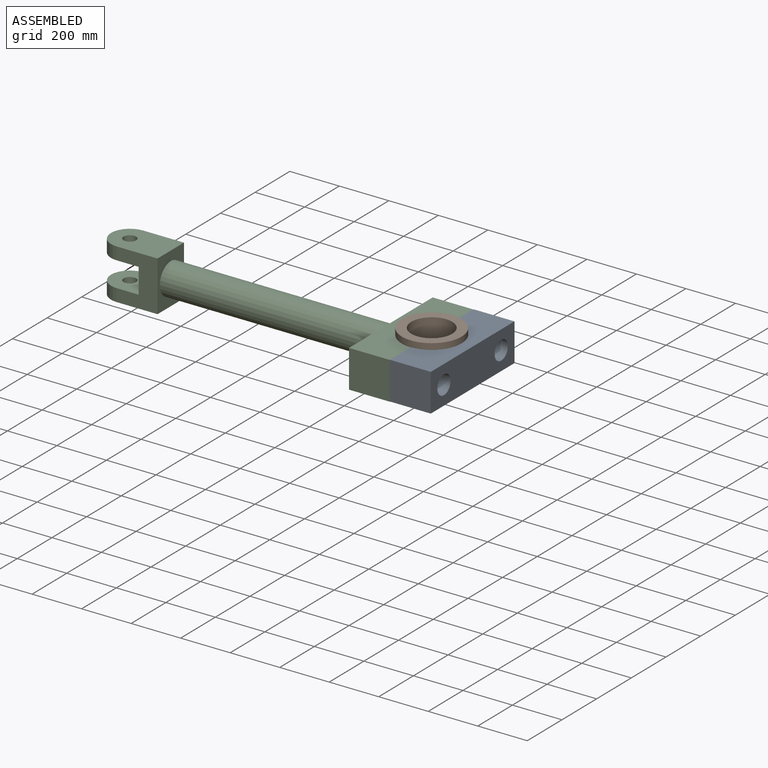
[diagram: assembled view]
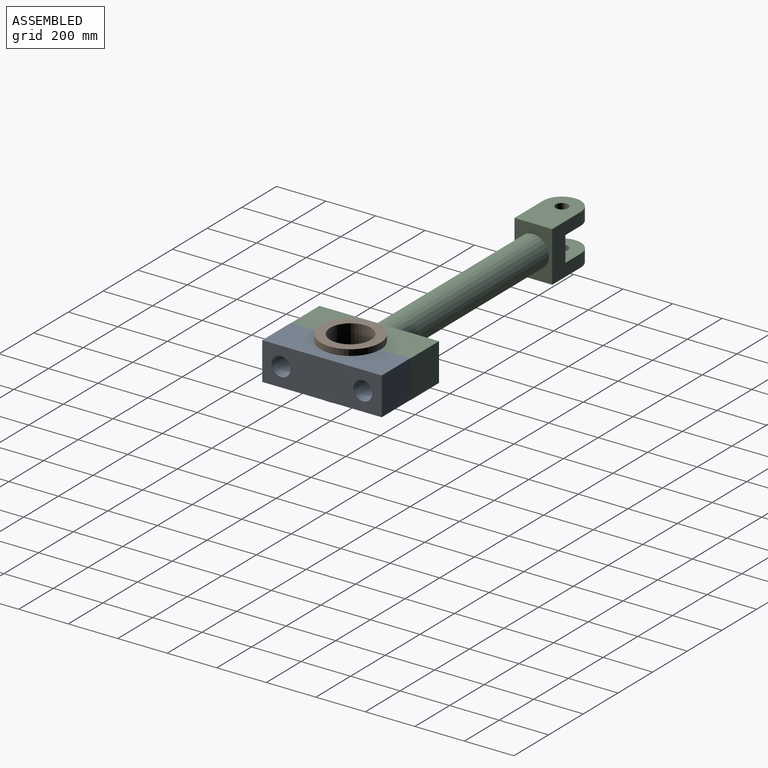
[diagram: assembled view, second angle]
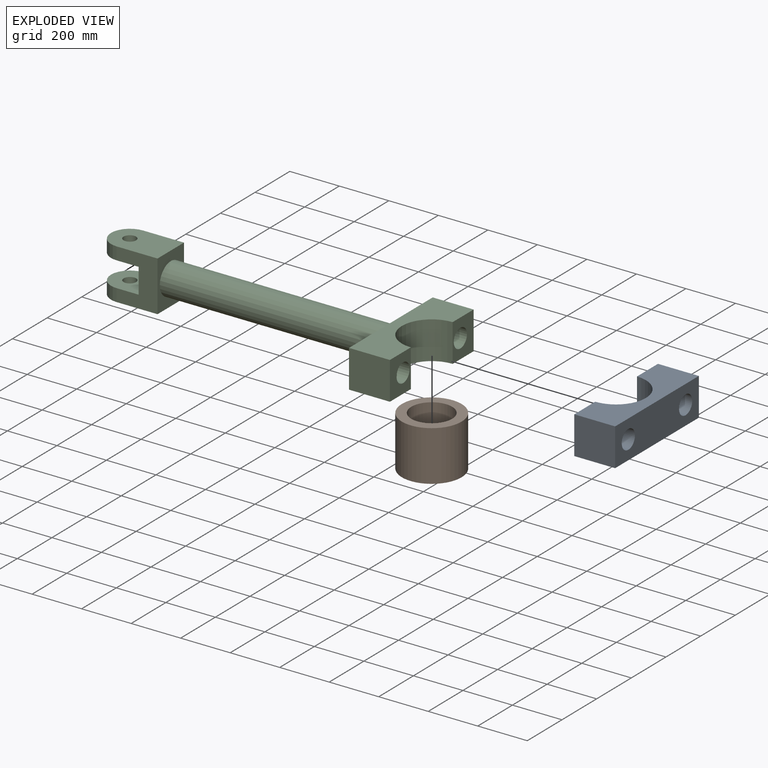
[diagram: exploded view]
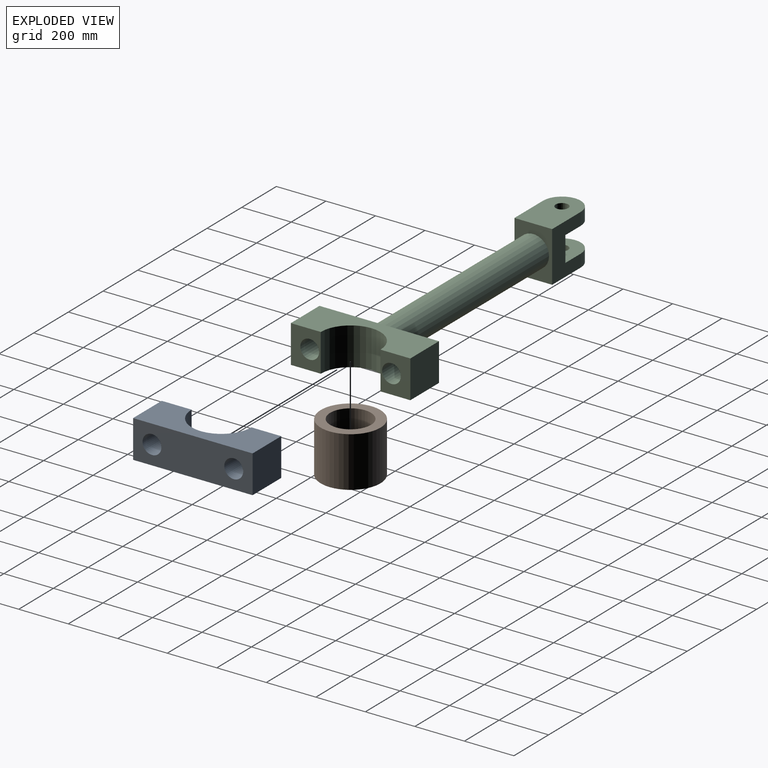
[diagram: exploded view, second angle]
ASSEMBLY  parts=3 mates=2
PART A: 10 faces, bbox 165.1x482.6x152.4 mm
  f0: plane 482.6x152.4mm, normal (1,0,0), area 64427.5mm2, adj f2,f3,f4,f5,f8,f9
  f1: plane 152.4x120.65mm, normal (-1,0,0), area 13826.7mm2, adj f2,f4,f5,f7,f9
  f2: plane 482.6x165.1mm, normal (0,0,-1), area 56812.1mm2, adj f0,f1,f3,f5,f6,f7
  f3: plane 165.1x152.4mm, normal (0,1,0), area 25161.2mm2, adj f0,f2,f4,f6
  f4: plane 482.6x165.1mm, normal (0,0,1), area 56812.1mm2, adj f0,f1,f3,f5,f6,f7
  f5: plane 165.1x152.4mm, normal (0,-1,0), area 25161.2mm2, adj f0,f1,f2,f4
  f6: plane 152.4x120.65mm, normal (-1,0,0), area 13826.7mm2, adj f2,f3,f4,f7,f8
  f7: cylinder r=120.65mm len=241.3mm, axis (0,0,-1), area 57764.7mm2, adj f1,f2,f4,f6
  f8: cylinder r=38.1mm len=165.1mm, axis (1,0,0), area 39523.2mm2, adj f0,f6
  f9: cylinder r=38.1mm len=165.1mm, axis (1,0,0), area 39523.2mm2, adj f0,f1
PART B: 4 faces, bbox 241.3x241.3x203.2 mm
  f0: cylinder r=82.55mm len=203.2mm, axis (0,0,-1), area 105395.2mm2, adj f2,f3
  f1: cylinder r=120.65mm len=241.3mm, axis (0,0,-1), area 154039.1mm2, adj f2,f3
  f2: plane 241.3x241.3mm, normal (0,0,1), area 24322mm2, adj f0,f1
  f3: plane 241.3x241.3mm, normal (0,0,-1), area 24322mm2, adj f0,f1
PART C: 23 faces, bbox 1295.4x482.6x203.2 mm
  f0: plane 482.6x152.4mm, normal (-1,0,0), area 51759.8mm2, adj f1,f15,f16,f17,f18,f21,f22
  f1: plane 482.6x165.1mm, normal (0,0,-1), area 56812.1mm2, adj f0,f2,f17,f18,f19,f20
  f2: plane 152.4x120.65mm, normal (1,0,0), area 13826.7mm2, adj f1,f16,f17,f20,f21
  f3: plane 203.2x165.1mm, normal (0,-1,0), area 24516.1mm2, adj f5,f6,f9,f10,f11,f12,f13,f14
  f4: cylinder r=25.4mm len=50.8mm, axis (0,0,-1), area 8107.3mm2, adj f10,f12
  f5: cylinder r=76.2mm len=152.4mm, axis (0,0,-1), area 12161mm2, adj f3,f7,f10,f12
  f6: plane 203.2x152.4mm, normal (1,0,0), area 18300mm2, adj f3,f7,f10,f11,f15
  f7: plane 203.2x165.1mm, normal (0,1,0), area 24516.1mm2, adj f5,f6,f9,f10,f11,f12,f13,f14
  f8: cylinder r=25.4mm len=50.8mm, axis (0,0,-1), area 8107.3mm2, adj f11,f14
  f9: cylinder r=76.2mm len=152.4mm, axis (0,0,-1), area 12161mm2, adj f3,f7,f11,f14
  f10: plane 241.3x152.4mm, normal (0,0,1), area 32255.1mm2, adj f3,f4,f5,f6,f7
  f11: plane 241.3x152.4mm, normal (0,0,-1), area 32255.1mm2, adj f3,f6,f7,f8,f9
  f12: plane 165.1x152.4mm, normal (0,0,-1), area 20642.3mm2, adj f3,f4,f5,f7,f13
  f13: plane 152.4x101.6mm, normal (-1,0,0), area 15483.8mm2, adj f3,f7,f12,f14
  f14: plane 165.1x152.4mm, normal (0,0,1), area 20642.3mm2, adj f3,f7,f8,f9,f13
  f15: cylinder r=63.5mm len=889mm, axis (-1,0,0), area 354695.2mm2, adj f0,f6
  f16: plane 482.6x165.1mm, normal (0,0,1), area 56812.1mm2, adj f0,f2,f17,f18,f19,f20
  f17: plane 165.1x152.4mm, normal (0,-1,0), area 25161.2mm2, adj f0,f1,f2,f16
  f18: plane 165.1x152.4mm, normal (0,1,0), area 25161.2mm2, adj f0,f1,f16,f19
  f19: plane 152.4x120.65mm, normal (1,0,0), area 13826.7mm2, adj f1,f16,f18,f20,f22
  f20: cylinder r=120.65mm len=241.3mm, axis (0,0,-1), area 57764.7mm2, adj f1,f2,f16,f19
  f21: cylinder r=38.1mm len=165.1mm, axis (1,0,0), area 39523.2mm2, adj f0,f2
  f22: cylinder r=38.1mm len=165.1mm, axis (1,0,0), area 39523.2mm2, adj f0,f19
PLACE A t=(-14677.34,2847.13,-651.93)mm
PLACE B t=(-14677.34,2847.13,-652.79)mm
PLACE C t=(-14677.34,2847.13,-652.79)mm
MATE fastened A.f9 <-> C.f21  axis (-1,0,0) through (6347.51,2758.23,-550.33)mm
MATE fastened B.f0 <-> C.f20  axis (0,0,-1) through (6347.51,2923.33,-551.19)mm
